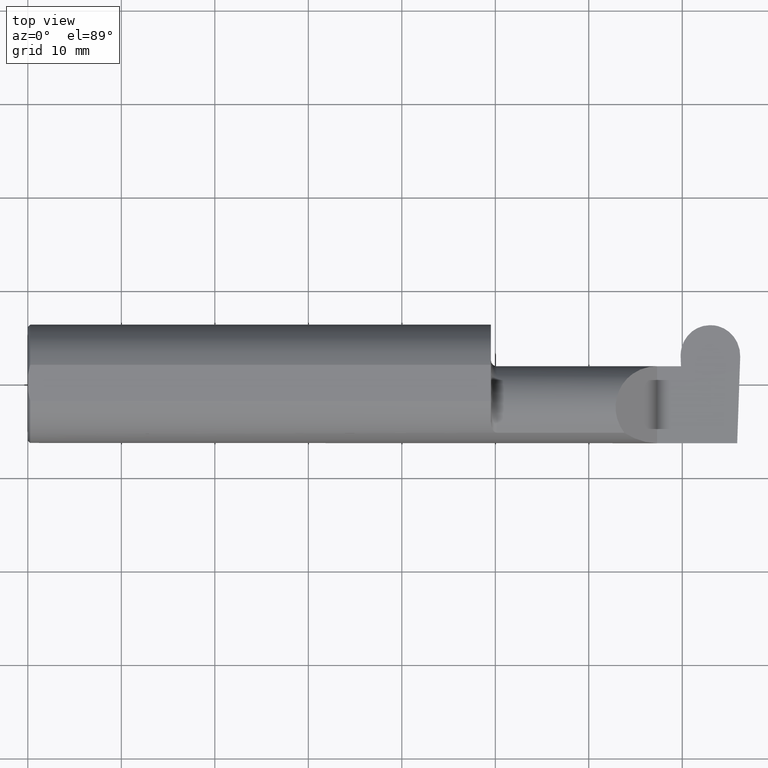
[diagram: clean part render]
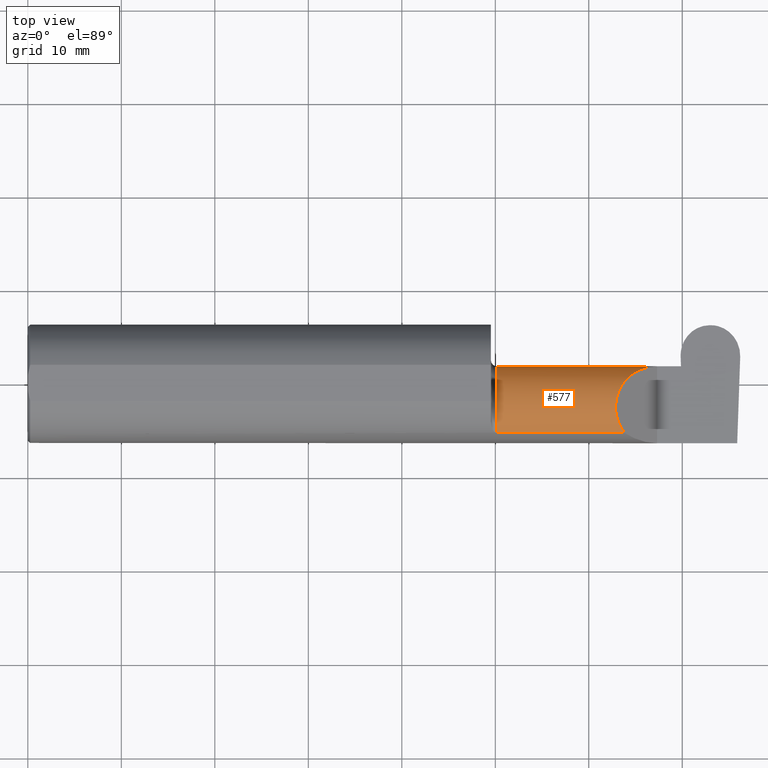
[diagram: same view with one face highlighted and labeled with its STEP entity id]
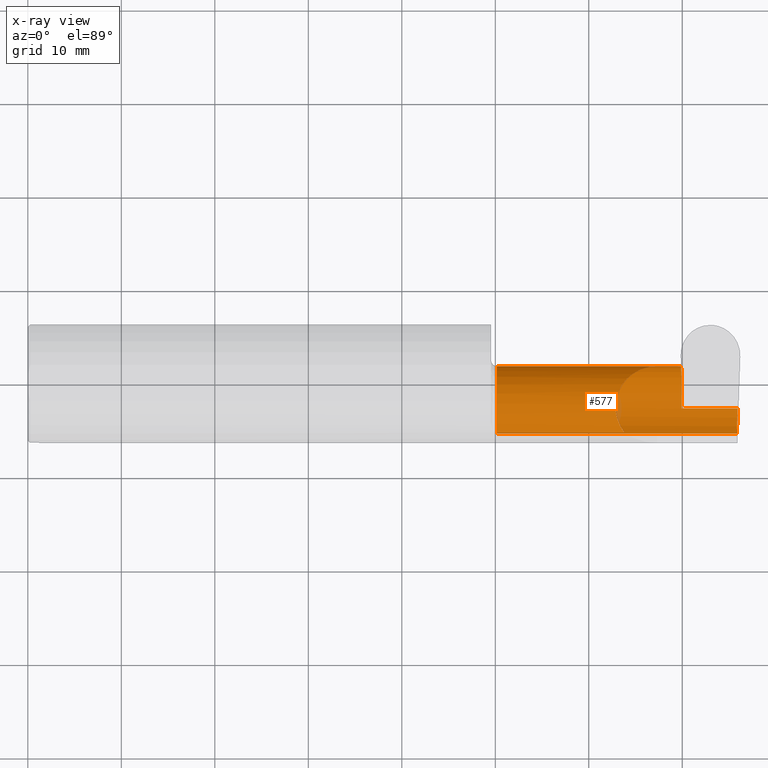
[diagram: x-ray of the same camera — body ghosted, the highlighted face saturated]
A machine part, top view. The second image highlights one B-rep face of the part: STEP entity #577.
The next image is the same camera in x-ray: the body ghosted, the highlighted face saturated — about 1% of this face is hidden behind the body in this view.
In plain terms, the highlighted cylindrical surface (partial cylindrical patch) has radius 4.445 mm, axis along (-1, -0, -0).
Its self-contained STEP definition (entity closure, byte-faithful):
#8 = CARTESIAN_POINT ( 'NONE',  ( 2.750478392166241903, 0.07404339472834139957, -0.006107411922948607387 ) ) ;
#9 = CARTESIAN_POINT ( 'NONE',  ( 3.402190948718818664, -0.1008500000000000091, -0.1750000000000000722 ) ) ;
#18 = CARTESIAN_POINT ( 'NONE',  ( 2.739220100782099543, 0.07404339472834142732, -0.006107411922947214404 ) ) ;
#24 = CARTESIAN_POINT ( 'NONE',  ( 1.975000000000000089, -0.1008500000000000368, 0.000000000000000000 ) ) ;
#30 = CARTESIAN_POINT ( 'NONE',  ( 2.650000000000000355, 0.07414999999999997982, 1.285879139104719253E-16 ) ) ;
#35 = ORIENTED_EDGE ( 'NONE', *, *, #568, .F. ) ;
#40 = AXIS2_PLACEMENT_3D ( 'NONE', #586, #522, #452 ) ;
#42 = CARTESIAN_POINT ( 'NONE',  ( 1.975000000000000089, -0.2080850024789289987, -0.1382955322609668025 ) ) ;
#47 = CARTESIAN_POINT ( 'NONE',  ( 2.753585400763539415, -0.1008500000000000091, -0.1750000000000000444 ) ) ;
#53 = CARTESIAN_POINT ( 'NONE',  ( 2.750478392166241903, 0.07404339472834139957, -0.006107411922948607387 ) ) ;
#71 = AXIS2_PLACEMENT_3D ( 'NONE', #24, #662, #99 ) ;
#99 = DIRECTION ( 'NONE',  ( 0.000000000000000000, -1.000000000000000000, 0.000000000000000000 ) ) ;
#109 = EDGE_CURVE ( 'NONE', #740, #593, #334, .T. ) ;
#112 = CARTESIAN_POINT ( 'NONE',  ( 1.950000000000000178, 0.07404339472834149671, -0.006107411922944308742 ) ) ;
#113 = CIRCLE ( 'NONE', #71, 0.1750000000000000167 ) ;
#135 = VECTOR ( 'NONE', #581, 39.37007874015748143 ) ;
#142 = CARTESIAN_POINT ( 'NONE',  ( 2.987885367171879025, -0.1400387324517230192, -0.1750000000000000444 ) ) ;
#145 = ORIENTED_EDGE ( 'NONE', *, *, #417, .F. ) ;
#146 = VECTOR ( 'NONE', #618, 39.37007874015748143 ) ;
#155 = LINE ( 'NONE', #112, #146 ) ;
#158 = EDGE_CURVE ( 'NONE', #732, #344, #229, .T. ) ;
#183 = ORIENTED_EDGE ( 'NONE', *, *, #653, .F. ) ;
#188 = VERTEX_POINT ( 'NONE', #8 ) ;
#192 = EDGE_CURVE ( 'NONE', #276, #465, #303, .T. ) ;
#193 = ORIENTED_EDGE ( 'NONE', *, *, #192, .T. ) ;
#195 = CARTESIAN_POINT ( 'NONE',  ( 2.986150208451177512, -0.2080850024789290265, -0.1382955322609667193 ) ) ;
#196 = CARTESIAN_POINT ( 'NONE',  ( 2.986150208451177512, -0.2080850024789290265, -0.1382955322609667193 ) ) ;
#210 =( BOUNDED_CURVE ( )  B_SPLINE_CURVE ( 3, ( #47, #516, #575, #53 ),
 .UNSPECIFIED., .F., .T. ) 
 B_SPLINE_CURVE_WITH_KNOTS ( ( 4, 4 ),
 ( 3.159045946109733993, 4.694935687864681739 ),
 .UNSPECIFIED. ) 
 CURVE ( )  GEOMETRIC_REPRESENTATION_ITEM ( )  RATIONAL_B_SPLINE_CURVE ( ( 1.000000000000000000, 0.8128932002257818201, 0.8128932002257818201, 1.000000000000000000 ) ) 
 REPRESENTATION_ITEM ( '' )  );
#229 = LINE ( 'NONE', #592, #654 ) ;
#232 = CARTESIAN_POINT ( 'NONE',  ( 2.361894750000000265, -0.2080850024789290820, -0.1382955322609667193 ) ) ;
#243 = CARTESIAN_POINT ( 'NONE',  ( 2.739255635872652750, 0.07407892981889423190, -0.004071607948631481184 ) ) ;
#264 = CARTESIAN_POINT ( 'NONE',  ( 2.511704467739032332, -0.2080850024789293040, 0.1382955322609664139 ) ) ;
#276 = VERTEX_POINT ( 'NONE', #196 ) ;
#280 = ORIENTED_EDGE ( 'NONE', *, *, #456, .T. ) ;
#283 = CARTESIAN_POINT ( 'NONE',  ( 2.739326706053758276, 0.07414999999999984104, 0.000000000000000000 ) ) ;
#284 = CARTESIAN_POINT ( 'NONE',  ( 2.989253867864499092, -0.1008500000000000091, -0.1750000000000000722 ) ) ;
#294 = DIRECTION ( 'NONE',  ( 1.000000000000000000, 4.274981070833214909E-17, 0.000000000000000000 ) ) ;
#303 = LINE ( 'NONE', #232, #692 ) ;
#305 = ORIENTED_EDGE ( 'NONE', *, *, #158, .T. ) ;
#308 = CARTESIAN_POINT ( 'NONE',  ( 1.975000000000000089, -0.2080850024789290820, 0.1382955322609667470 ) ) ;
#317 = CARTESIAN_POINT ( 'NONE',  ( 2.409263745716141880, -0.07597241004310721635, 0.2407362542838555608 ) ) ;
#324 = ORIENTED_EDGE ( 'NONE', *, *, #109, .F. ) ;
#334 = B_SPLINE_CURVE_WITH_KNOTS ( 'NONE', 3,
 ( #18, #243, #595, #283 ),
 .UNSPECIFIED., .F., .F.,
 ( 4, 4 ),
 ( 0.000000000000000000, 1.000000000000000000 ),
 .UNSPECIFIED. ) ;
#340 = EDGE_CURVE ( 'NONE', #411, #188, #210, .T. ) ;
#344 = VERTEX_POINT ( 'NONE', #264 ) ;
#358 =( BOUNDED_CURVE ( )  B_SPLINE_CURVE ( 3, ( #604, #317, #614, #30 ),
 .UNSPECIFIED., .F., .T. ) 
 B_SPLINE_CURVE_WITH_KNOTS ( ( 4, 4 ),
 ( 5.623622464215678463, 7.853981633974482790 ),
 .UNSPECIFIED. ) 
 CURVE ( )  GEOMETRIC_REPRESENTATION_ITEM ( )  RATIONAL_B_SPLINE_CURVE ( ( 1.000000000000000000, 0.6266774836123988335, 0.6266774836123988335, 1.000000000000000000 ) ) 
 REPRESENTATION_ITEM ( '' )  );
#361 = ORIENTED_EDGE ( 'NONE', *, *, #565, .T. ) ;
#365 = VECTOR ( 'NONE', #658, 39.37007874015748143 ) ;
#379 = VERTEX_POINT ( 'NONE', #511 ) ;
#411 = VERTEX_POINT ( 'NONE', #459 ) ;
#414 = DIRECTION ( 'NONE',  ( -1.000000000000000000, -4.274981070833214909E-17, -0.000000000000000000 ) ) ;
#415 = LINE ( 'NONE', #9, #135 ) ;
#417 = EDGE_CURVE ( 'NONE', #188, #740, #155, .T. ) ;
#435 = CARTESIAN_POINT ( 'NONE',  ( 2.986812263240209653, -0.1771157075472508113, -0.1623092683844331585 ) ) ;
#452 = DIRECTION ( 'NONE',  ( 0.000000000000000000, -1.000000000000000000, 0.000000000000000000 ) ) ;
#455 = CYLINDRICAL_SURFACE ( 'NONE', #40, 0.1750000000000000167 ) ;
#456 = EDGE_CURVE ( 'NONE', #344, #578, #358, .T. ) ;
#459 = CARTESIAN_POINT ( 'NONE',  ( 2.753585400763539415, -0.1008500000000000091, -0.1750000000000000444 ) ) ;
#465 = VERTEX_POINT ( 'NONE', #42 ) ;
#471 = CARTESIAN_POINT ( 'NONE',  ( 2.739326706053758276, 0.07414999999999984104, 0.000000000000000000 ) ) ;
#478 = CARTESIAN_POINT ( 'NONE',  ( 2.739220100782099543, 0.07404339472834142732, -0.006107411922947214404 ) ) ;
#490 = CARTESIAN_POINT ( 'NONE',  ( 1.950000000000000178, 0.07414999999999995206, 1.285879139104719253E-16 ) ) ;
#506 = FACE_OUTER_BOUND ( 'NONE', #517, .T. ) ;
#511 = CARTESIAN_POINT ( 'NONE',  ( 2.989253867864499092, -0.1008500000000000091, -0.1750000000000000722 ) ) ;
#516 = CARTESIAN_POINT ( 'NONE',  ( 2.753553955298210898, -0.001152430219569897715, -0.1750000000000000444 ) ) ;
#517 = EDGE_LOOP ( 'NONE', ( #193, #652, #305, #280, #361, #324, #145, #657, #183, #35 ) ) ;
#522 = DIRECTION ( 'NONE',  ( -1.000000000000000000, -4.274981070833214909E-17, -0.000000000000000000 ) ) ;
#553 = EDGE_CURVE ( 'NONE', #732, #465, #113, .T. ) ;
#564 = LINE ( 'NONE', #490, #365 ) ;
#565 = EDGE_CURVE ( 'NONE', #578, #593, #564, .T. ) ;
#568 = EDGE_CURVE ( 'NONE', #276, #379, #673, .T. ) ;
#575 = CARTESIAN_POINT ( 'NONE',  ( 2.752279901668355677, 0.07056399972053567504, -0.1057442486376064528 ) ) ;
#577 = ADVANCED_FACE ( 'NONE', ( #506 ), #455, .T. ) ;
#578 = VERTEX_POINT ( 'NONE', #696 ) ;
#581 = DIRECTION ( 'NONE',  ( -1.000000000000000000, -0.000000000000000000, -0.000000000000000000 ) ) ;
#586 = CARTESIAN_POINT ( 'NONE',  ( 1.950000000000000178, -0.1008500000000000368, 0.000000000000000000 ) ) ;
#592 = CARTESIAN_POINT ( 'NONE',  ( 2.361894750000000265, -0.2080850024789290820, 0.1382955322609667193 ) ) ;
#593 = VERTEX_POINT ( 'NONE', #471 ) ;
#595 = CARTESIAN_POINT ( 'NONE',  ( 2.739291170963205069, 0.07411446490944703647, -0.002035803974315740159 ) ) ;
#604 = CARTESIAN_POINT ( 'NONE',  ( 2.511704467739032332, -0.2080850024789293040, 0.1382955322609664139 ) ) ;
#614 = CARTESIAN_POINT ( 'NONE',  ( 2.482823929317964584, 0.07414999999999999369, 0.1671760706820341613 ) ) ;
#618 = DIRECTION ( 'NONE',  ( -1.000000000000000000, -4.274981070833214909E-17, -0.000000000000000000 ) ) ;
#652 = ORIENTED_EDGE ( 'NONE', *, *, #553, .F. ) ;
#653 = EDGE_CURVE ( 'NONE', #379, #411, #415, .T. ) ;
#654 = VECTOR ( 'NONE', #294, 39.37007874015748143 ) ;
#657 = ORIENTED_EDGE ( 'NONE', *, *, #340, .F. ) ;
#658 = DIRECTION ( 'NONE',  ( 1.000000000000000000, 4.274981070833214909E-17, 0.000000000000000000 ) ) ;
#662 = DIRECTION ( 'NONE',  ( -1.000000000000000000, -4.274981070833214909E-17, -0.000000000000000000 ) ) ;
#673 =( BOUNDED_CURVE ( )  B_SPLINE_CURVE ( 3, ( #195, #435, #142, #284 ),
 .UNSPECIFIED., .F., .F. ) 
 B_SPLINE_CURVE_WITH_KNOTS ( ( 4, 4 ),
 ( 0.4474640105399693701, 1.107026853503875419 ),
 .UNSPECIFIED. ) 
 CURVE ( )  GEOMETRIC_REPRESENTATION_ITEM ( )  RATIONAL_B_SPLINE_CURVE ( ( 1.000000000000000000, 0.9640754331822831702, 0.9640754331822831702, 1.000000000000000000 ) ) 
 REPRESENTATION_ITEM ( '' )  );
#692 = VECTOR ( 'NONE', #414, 39.37007874015748143 ) ;
#696 = CARTESIAN_POINT ( 'NONE',  ( 2.650000000000000355, 0.07414999999999997982, 1.285879139104719253E-16 ) ) ;
#732 = VERTEX_POINT ( 'NONE', #308 ) ;
#740 = VERTEX_POINT ( 'NONE', #478 ) ;